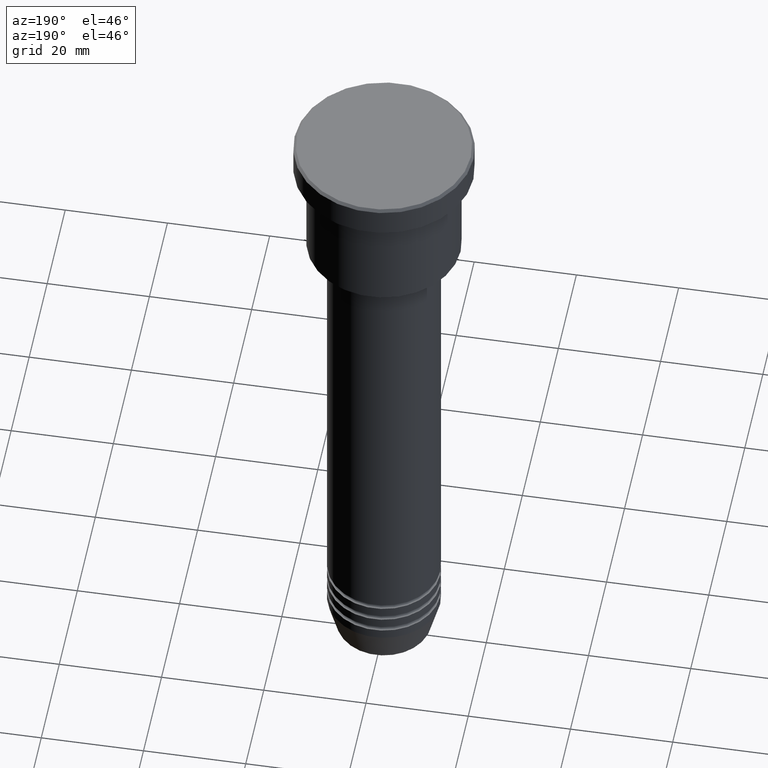
[diagram: clean part render]
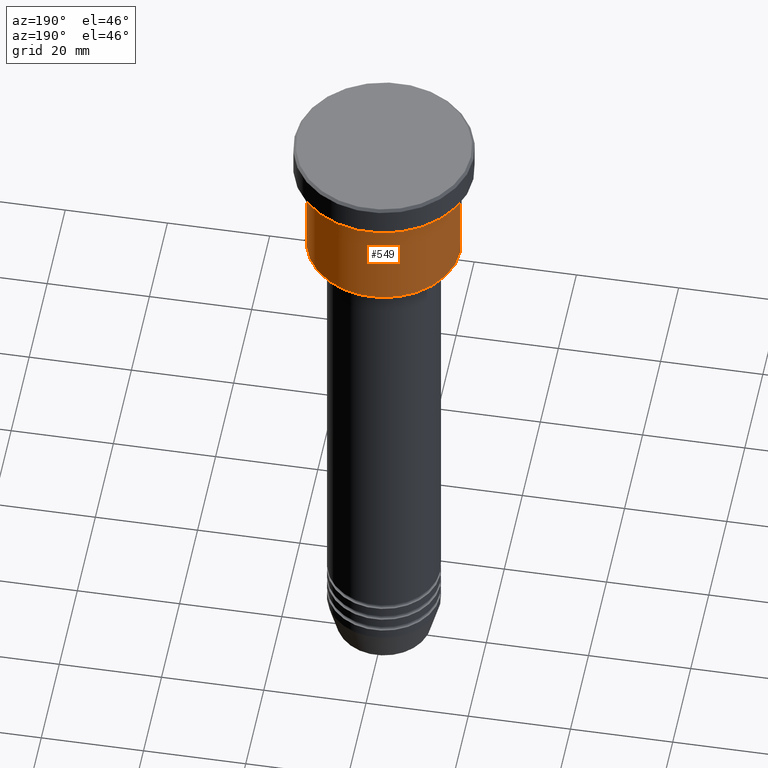
[diagram: same view with one face highlighted and labeled with its STEP entity id]
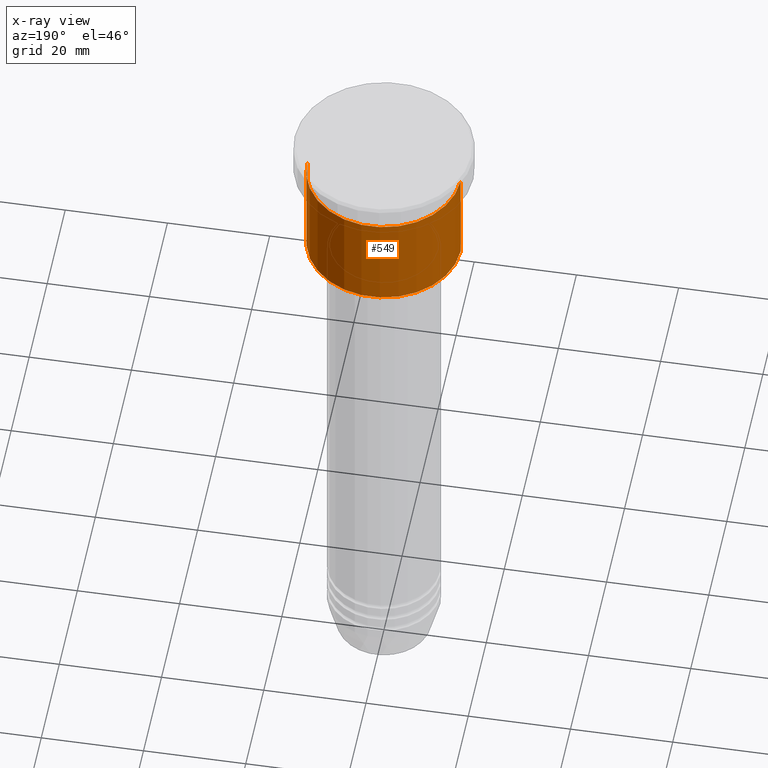
[diagram: x-ray of the same camera — body ghosted, the highlighted face saturated]
A machine part, auxiliary view. The second image highlights one B-rep face of the part: STEP entity #549.
The next image is the same camera in x-ray: the body ghosted, the highlighted face saturated — about 0% of this face is hidden behind the body in this view.
In plain terms, the highlighted cylindrical surface (partial cylindrical patch) has radius 15 mm, axis along (-0, -0, 1).
Its self-contained STEP definition (entity closure, byte-faithful):
#5 = VERTEX_POINT ( 'NONE', #100 ) ;
#31 = DIRECTION ( 'NONE',  ( -0.000000000000000000, -0.000000000000000000, 1.000000000000000000 ) ) ;
#34 = LINE ( 'NONE', #764, #1092 ) ;
#45 = ORIENTED_EDGE ( 'NONE', *, *, #358, .F. ) ;
#64 = CIRCLE ( 'NONE', #253, 15.00000000000000000 ) ;
#86 = ORIENTED_EDGE ( 'NONE', *, *, #839, .F. ) ;
#100 = CARTESIAN_POINT ( 'NONE',  ( 15.00000000000000000, 0.000000000000000000, -26.50000000000000000 ) ) ;
#107 = DIRECTION ( 'NONE',  ( -1.000000000000000000, 0.000000000000000000, 0.000000000000000000 ) ) ;
#135 = AXIS2_PLACEMENT_3D ( 'NONE', #412, #615, #1063 ) ;
#140 = FACE_OUTER_BOUND ( 'NONE', #821, .T. ) ;
#204 = EDGE_CURVE ( 'NONE', #1085, #841, #440, .T. ) ;
#205 = CARTESIAN_POINT ( 'NONE',  ( 0.000000000000000000, 0.000000000000000000, -6.999999999999995559 ) ) ;
#220 = DIRECTION ( 'NONE',  ( -0.000000000000000000, -0.000000000000000000, 1.000000000000000000 ) ) ;
#253 = AXIS2_PLACEMENT_3D ( 'NONE', #302, #220, #107 ) ;
#267 = AXIS2_PLACEMENT_3D ( 'NONE', #205, #1121, #771 ) ;
#273 = CARTESIAN_POINT ( 'NONE',  ( -15.00000000000000000, 1.836970198721029589E-15, 0.000000000000000000 ) ) ;
#302 = CARTESIAN_POINT ( 'NONE',  ( 0.000000000000000000, 0.000000000000000000, -26.50000000000000000 ) ) ;
#309 = CARTESIAN_POINT ( 'NONE',  ( -15.00000000000000000, 1.836970198721029589E-15, -26.50000000000000000 ) ) ;
#358 = EDGE_CURVE ( 'NONE', #709, #841, #557, .T. ) ;
#412 = CARTESIAN_POINT ( 'NONE',  ( 0.000000000000000000, 0.000000000000000000, 0.000000000000000000 ) ) ;
#440 = LINE ( 'NONE', #273, #673 ) ;
#546 = CARTESIAN_POINT ( 'NONE',  ( 15.00000000000000000, 0.000000000000000000, -6.999999999999995559 ) ) ;
#549 = ADVANCED_FACE ( 'NONE', ( #140 ), #1078, .T. ) ;
#557 = CIRCLE ( 'NONE', #267, 15.00000000000000000 ) ;
#615 = DIRECTION ( 'NONE',  ( -0.000000000000000000, -0.000000000000000000, 1.000000000000000000 ) ) ;
#643 = ORIENTED_EDGE ( 'NONE', *, *, #812, .T. ) ;
#673 = VECTOR ( 'NONE', #1002, 1000.000000000000000 ) ;
#709 = VERTEX_POINT ( 'NONE', #546 ) ;
#730 = ORIENTED_EDGE ( 'NONE', *, *, #204, .T. ) ;
#764 = CARTESIAN_POINT ( 'NONE',  ( 15.00000000000000000, 0.000000000000000000, 0.000000000000000000 ) ) ;
#771 = DIRECTION ( 'NONE',  ( 1.000000000000000000, 0.000000000000000000, 0.000000000000000000 ) ) ;
#812 = EDGE_CURVE ( 'NONE', #5, #1085, #64, .T. ) ;
#821 = EDGE_LOOP ( 'NONE', ( #643, #730, #45, #86 ) ) ;
#839 = EDGE_CURVE ( 'NONE', #5, #709, #34, .T. ) ;
#841 = VERTEX_POINT ( 'NONE', #1123 ) ;
#1002 = DIRECTION ( 'NONE',  ( -0.000000000000000000, -0.000000000000000000, 1.000000000000000000 ) ) ;
#1063 = DIRECTION ( 'NONE',  ( 1.000000000000000000, 0.000000000000000000, 0.000000000000000000 ) ) ;
#1078 = CYLINDRICAL_SURFACE ( 'NONE', #135, 15.00000000000000000 ) ;
#1085 = VERTEX_POINT ( 'NONE', #309 ) ;
#1092 = VECTOR ( 'NONE', #31, 1000.000000000000000 ) ;
#1121 = DIRECTION ( 'NONE',  ( -0.000000000000000000, -0.000000000000000000, 1.000000000000000000 ) ) ;
#1123 = CARTESIAN_POINT ( 'NONE',  ( -15.00000000000000000, 1.836970198721029589E-15, -6.999999999999995559 ) ) ;